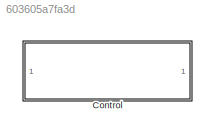
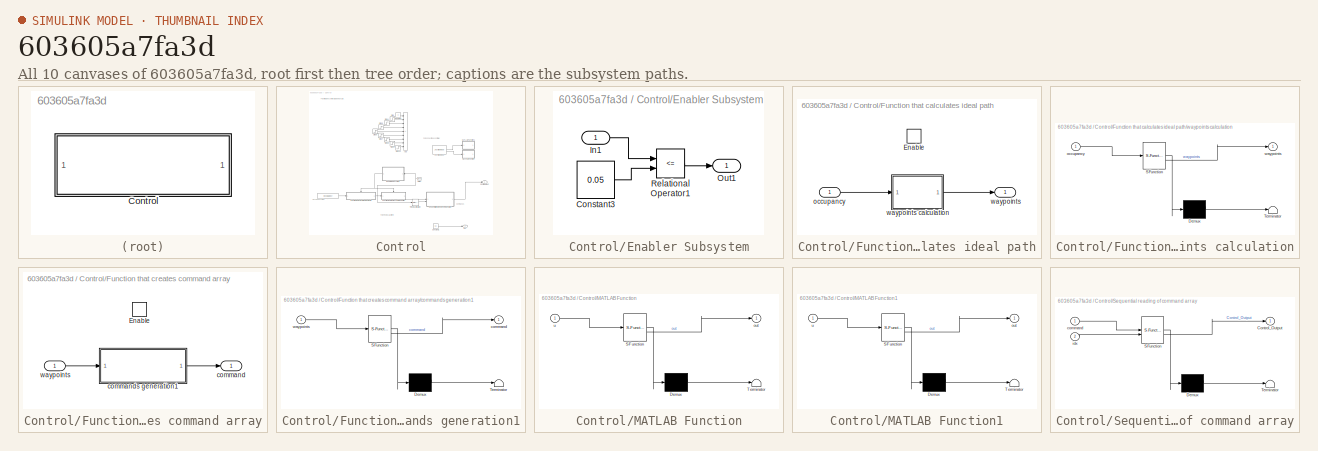
[diagram: thumbnail index - all 10 canvases of the model, root first then tree order]
MODEL slx_603605a7fa3d
KIND library
CONFIG AbsTol = auto
CONFIG EnableMultiTasking = off
CONFIG FixedStep = auto
CONFIG MaxStep = auto
CONFIG MinStep = auto
CONFIG RelTol = 1e-3
CONFIG SampleTimeConstraint = Unconstrained
CONFIG SolverName = VariableStepAuto
CONFIG StartTime = 0.0
CONFIG StopTime = 10.0
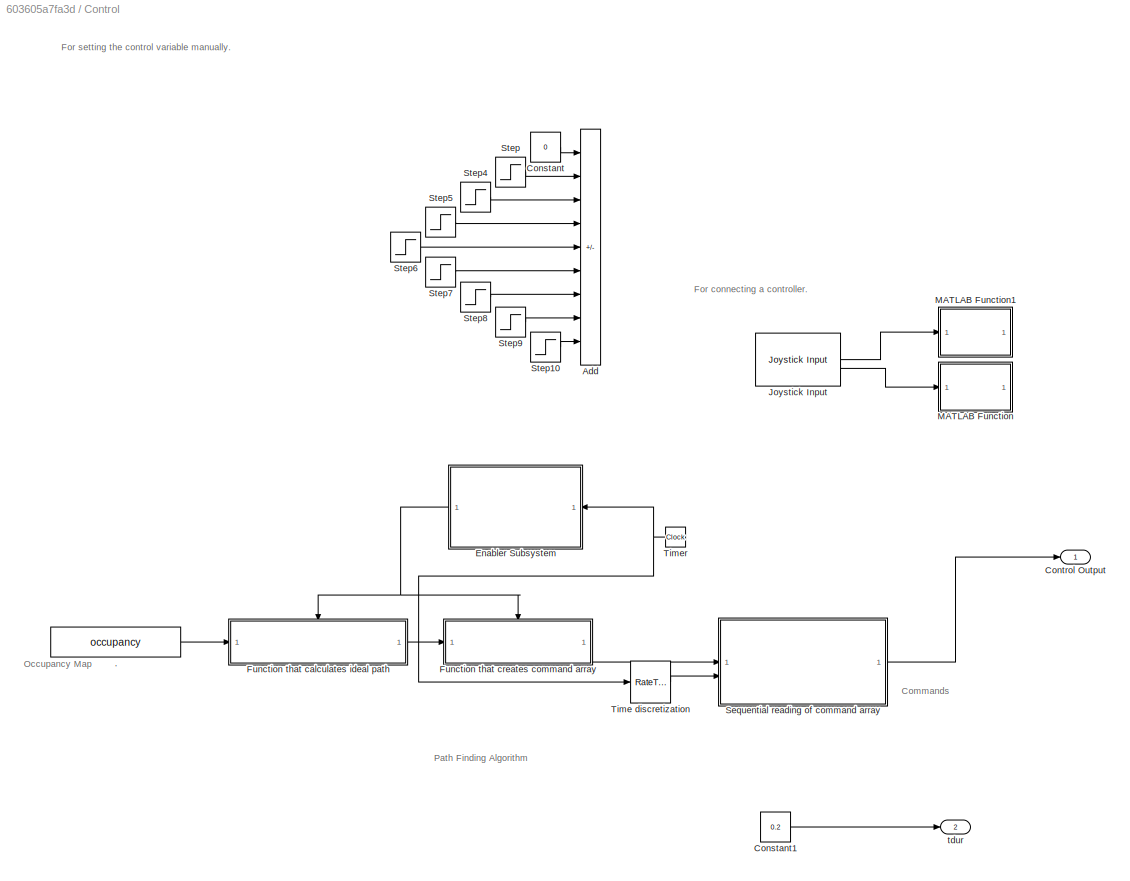
BLOCK [SubSystem] Control
BLOCK [Constant] Control/.
  NameLocation = right
  Value = occupancy
BLOCK [Sum] Control/Add
  Commented = on
  IconShape = rectangular
  Inputs = ++++++++-
BLOCK [Constant] Control/Constant
  Commented = on
  Value = 0
BLOCK [Constant] Control/Constant1
  Value = 0.2
BLOCK [Outport] Control/Control Output
BLOCK [SubSystem] Control/Enabler Subsystem
BLOCK [Constant] Control/Enabler Subsystem/Constant3
  Value = 0.05
BLOCK [Inport] Control/Enabler Subsystem/In1
  NameLocation = top
BLOCK [Outport] Control/Enabler Subsystem/Out1
BLOCK [RelationalOperator] Control/Enabler Subsystem/Relational Operator1
  InputSameDT = off
  Operator = <=
  OutDataTypeStr = boolean
  RndMeth = Simplest
BLOCK [SubSystem] Control/Function that calculates ideal path
  TreatAsAtomicUnit = on
BLOCK [EnablePort] Control/Function that calculates ideal path/Enable
BLOCK [Inport] Control/Function that calculates ideal path/occupancy
BLOCK [Outport] Control/Function that calculates ideal path/waypoints
BLOCK [SubSystem] Control/Function that calculates ideal path/waypoints calculation
  ErrorFcn = Stateflow.Translate.translate
  PermitHierarchicalResolution = ExplicitOnly
  SFBlockType = MATLAB Function
  SystemSampleTime = 0.1
  TreatAsAtomicUnit = on
BLOCK [Demux] Control/Function that calculates ideal path/waypoints calculation/ Demux 
  Outputs = 1
BLOCK [S-Function] Control/Function that calculates ideal path/waypoints calculation/ SFunction 
  EnableBusSupport = off
  FunctionName = sf_sfun
  PortCounts = [1 2]
  SFcnIsStateOwnerBlock = off
  SFunctionDeploymentMode = off
  Tag = Stateflow S-Function 1
BLOCK [Terminator] Control/Function that calculates ideal path/waypoints calculation/ Terminator 
BLOCK [Inport] Control/Function that calculates ideal path/waypoints calculation/occupancy
BLOCK [Outport] Control/Function that calculates ideal path/waypoints calculation/waypoints
BLOCK [SubSystem] Control/Function that creates command array
  TreatAsAtomicUnit = on
BLOCK [EnablePort] Control/Function that creates command array/Enable
BLOCK [Outport] Control/Function that creates command array/command
BLOCK [SubSystem] Control/Function that creates command array/commands generation1
  ErrorFcn = Stateflow.Translate.translate
  PermitHierarchicalResolution = ExplicitOnly
  SFBlockType = MATLAB Function
  TreatAsAtomicUnit = on
BLOCK [Demux] Control/Function that creates command array/commands generation1/ Demux 
  Outputs = 1
BLOCK [S-Function] Control/Function that creates command array/commands generation1/ SFunction 
  EnableBusSupport = off
  FunctionName = sf_sfun
  PortCounts = [1 2]
  SFcnIsStateOwnerBlock = off
  SFunctionDeploymentMode = off
  Tag = Stateflow S-Function 5
BLOCK [Terminator] Control/Function that creates command array/commands generation1/ Terminator 
BLOCK [Outport] Control/Function that creates command array/commands generation1/command
BLOCK [Inport] Control/Function that creates command array/commands generation1/waypoints
BLOCK [Inport] Control/Function that creates command array/waypoints
BLOCK [Reference] Control/Joystick Input  REF=vrlib/Joystick Input
  Commented = on
  SourceBlock = vrlib/Joystick Input
  SourceType = Joystick Input
BLOCK [SubSystem] Control/MATLAB Function
  Commented = on
  ErrorFcn = Stateflow.Translate.translate
  PermitHierarchicalResolution = ExplicitOnly
  SFBlockType = MATLAB Function
  TreatAsAtomicUnit = on
BLOCK [Demux] Control/MATLAB Function/ Demux 
  Outputs = 1
BLOCK [S-Function] Control/MATLAB Function/ SFunction 
  EnableBusSupport = off
  FunctionName = sf_sfun
  PortCounts = [1 2]
  SFcnIsStateOwnerBlock = off
  SFunctionDeploymentMode = off
  Tag = Stateflow S-Function 2
BLOCK [Terminator] Control/MATLAB Function/ Terminator 
BLOCK [Outport] Control/MATLAB Function/out
BLOCK [Inport] Control/MATLAB Function/u
BLOCK [SubSystem] Control/MATLAB Function1
  Commented = on
  ErrorFcn = Stateflow.Translate.translate
  PermitHierarchicalResolution = ExplicitOnly
  SFBlockType = MATLAB Function
  TreatAsAtomicUnit = on
BLOCK [Demux] Control/MATLAB Function1/ Demux 
  Outputs = 1
BLOCK [S-Function] Control/MATLAB Function1/ SFunction 
  EnableBusSupport = off
  FunctionName = sf_sfun
  PortCounts = [1 2]
  SFcnIsStateOwnerBlock = off
  SFunctionDeploymentMode = off
  Tag = Stateflow S-Function 3
BLOCK [Terminator] Control/MATLAB Function1/ Terminator 
BLOCK [Outport] Control/MATLAB Function1/out
BLOCK [Inport] Control/MATLAB Function1/u
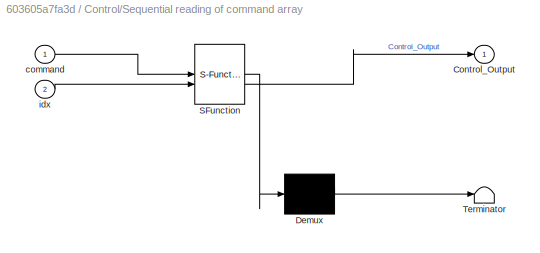
BLOCK [SubSystem] Control/Sequential reading of command array
  ErrorFcn = Stateflow.Translate.translate
  PermitHierarchicalResolution = ExplicitOnly
  SFBlockType = MATLAB Function
  TreatAsAtomicUnit = on
BLOCK [Demux] Control/Sequential reading of command array/ Demux 
  Outputs = 1
BLOCK [S-Function] Control/Sequential reading of command array/ SFunction 
  EnableBusSupport = off
  FunctionName = sf_sfun
  PortCounts = [2 2]
  SFcnIsStateOwnerBlock = off
  SFunctionDeploymentMode = off
  Tag = Stateflow S-Function 4
BLOCK [Terminator] Control/Sequential reading of command array/ Terminator 
BLOCK [Outport] Control/Sequential reading of command array/Control_Output
BLOCK [Inport] Control/Sequential reading of command array/command
BLOCK [Inport] Control/Sequential reading of command array/idx
  Port = 2
BLOCK [Step] Control/Step
  After = 2
  Commented = on
  SampleTime = 0
BLOCK [Step] Control/Step10
  After = 0
  Commented = on
  SampleTime = 0
  Time = 16
BLOCK [Step] Control/Step4
  After = 0
  Commented = on
  SampleTime = 0
  Time = 1.5
BLOCK [Step] Control/Step5
  After = 0
  Commented = on
  SampleTime = 0
  Time = 9
BLOCK [Step] Control/Step6
  After = 0
  Commented = on
  SampleTime = 0
  Time = 10
BLOCK [Step] Control/Step7
  After = 0
  Commented = on
  SampleTime = 0
  Time = 10
BLOCK [Step] Control/Step8
  After = 0
  Commented = on
  SampleTime = 0
  Time = 12
BLOCK [Step] Control/Step9
  After = 0
  Commented = on
  SampleTime = 0
  Time = 14
BLOCK [RateTransition] Control/Time discretization
  OutPortSampleTime = 0.5
BLOCK [Clock] Control/Timer
  NameLocation = right
BLOCK [Outport] Control/tdur
  Port = 2
ANNOTATION Control: Occupancy Map
ANNOTATION Control: Path Finding Algorithm
ANNOTATION Control: Commands
ANNOTATION Control: For connecting a controller.
ANNOTATION Control: For setting the control variable manually.
LINE Control/.:1 -> Control/Function that calculates ideal path:1
LINE Control/Constant1:1 -> Control/tdur:1
LINE Control/Constant:1 -> Control/Add:1
LINE Control/Enabler Subsystem/Constant3:1 -> Control/Enabler Subsystem/Relational Operator1:2
LINE Control/Enabler Subsystem/In1:1 -> Control/Enabler Subsystem/Relational Operator1:1
LINE Control/Enabler Subsystem/Relational Operator1:1 -> Control/Enabler Subsystem/Out1:1
NET Control/Enabler Subsystem:1 -> Control/Function that calculates ideal path:enable, Control/Function that creates command array:enable
LINE Control/Function that calculates ideal path/occupancy:1 -> Control/Function that calculates ideal path/waypoints calculation:1
LINE Control/Function that calculates ideal path/waypoints calculation:1 -> Control/Function that calculates ideal path/waypoints:1
LINE Control/Function that calculates ideal path:1 -> Control/Function that creates command array:1
LINE Control/Function that creates command array/commands generation1:1 -> Control/Function that creates command array/command:1
LINE Control/Function that creates command array/waypoints:1 -> Control/Function that creates command array/commands generation1:1
LINE Control/Function that creates command array:1 -> Control/Sequential reading of command array:1
LINE Control/Joystick Input:1 -> Control/MATLAB Function1:1
LINE Control/Joystick Input:2 -> Control/MATLAB Function:1
LINE Control/Sequential reading of command array:1 -> Control/Control Output:1
LINE Control/Step10:1 -> Control/Add:9
LINE Control/Step4:1 -> Control/Add:3
LINE Control/Step5:1 -> Control/Add:4
LINE Control/Step6:1 -> Control/Add:5
LINE Control/Step7:1 -> Control/Add:6
LINE Control/Step8:1 -> Control/Add:7
LINE Control/Step9:1 -> Control/Add:8
LINE Control/Step:1 -> Control/Add:2
LINE Control/Time discretization:1 -> Control/Sequential reading of command array:2
NET Control/Timer:1 -> Control/Enabler Subsystem:1, Control/Time discretization:1
note: NET lines group one-source signal fan-out (src -> all destinations, sorted); 1:1 wires keep LINE
CHART Control/MATLAB Function states=1 transitions=1
  STATE_LABEL 'eML_blk_kernel()'
  STATE_LABEL 'SCRIPT:\nfunction out = jsReadButtons(u)\n\nout = 0;\nposVec = 0;\n\nfor i = 1:length(u)\n    if u(i) == 1\n        posVec = i;\n    end\n    \nif posVec == 1 % walk backwards\n    out = 3;\nelseif posVec == 4 % walk forwards\n    out = 1;\nelseif posVec == 2 % walk right\n    out = 5;\nelseif posVec == 3 % walk left\n    out = 4;\nelseif posVec == 5 % turn left\n    out = 6;\nelseif posVec == 6 % turn right\n    out =...<+52ch>'
CHART Control/MATLAB Function1 states=1 transitions=1
  STATE_LABEL 'eML_blk_kernel()'
  STATE_LABEL 'SCRIPT:\nfunction out = jsReadAxes(u)\n\nout = 0;\n\nif max(abs(u(1:2))) > 0.2\n\n    if abs(u(1)) > abs(u(2)) % turning\n        if u(1) < 0\n            out = 6; % left\n        else\n            out = 7; % right\n        end\n    elseif abs(u(1)) < abs(u(2)) % walking\n        if u(2) < 0\n            out = 1; % front\n        else\n            out = 3; % backwards\n        end\n    end\n\nend\n\nif max(abs(u(3))) > ...<+116ch>'
CHART Control/Sequential reading of command array states=1 transitions=1
  STATE_LABEL 'eML_blk_kernel()'
  STATE_LABEL 'SCRIPT:\nfunction Control_Output = processVector(command, idx)\n% %Control output corresponds to command element after n times 0.5 seconds\ndex=ceil(idx/0.5+1);\nControl_Output=0;    \nif dex<=length(command)   % this can be updated according to the length of command array\n Control_Output = command(dex); \nend\n% disp(Control_Output)'
CHART Control/Function that creates command array/commands generation1 states=1 transitions=1
  STATE_LABEL 'eML_blk_kernel()'
  STATE_LABEL 'SCRIPT:\nfunction command = fcn(waypoints)\n    % Extract x and y coordinates\n    x = waypoints(:, 1);  \n    y = waypoints(:, 2);  \n\n    % Preallocate command\n    command=zeros(1,100);\n    dx=zeros(1,length(x));\n    dy=zeros(1,length(x));\n    alpha=zeros(1,length(x));\n    omega=15.2; % default turn angle is 80% of 19 deg\n    nb = 0;\n  \n    % For loop to calculate the angles\n    for i=1:length(x)-1\n ...<+2105ch>'
CHART Control/Function that calculates ideal path/waypoints calculation states=1 transitions=1
  STATE_LABEL 'eML_blk_kernel()'
  STATE_LABEL "SCRIPT:\nfunction waypoints = fcn(occupancy)\n\n% start and end position\nstartPosition = [0 51];   \ngoalPosition = [14 27];\n\n% Create occupancy map\nresolution = 1; % 1 cell = 1 meter\nmap = occupancyMap(occupancy, resolution); \n% show(map);\n% title('Occupancy Map');\n\n% Configure PRM planner\nnumnodes = 3500; % Number of random samples\nplanner = mobileRobotPRM(map, numnodes);\nplanner.ConnectionDistance ...<+437ch>"
CHART  states=0 transitions=0
CHART  states=0 transitions=0
CHART  states=0 transitions=0
CHART  states=0 transitions=0
CHART  states=0 transitions=0
